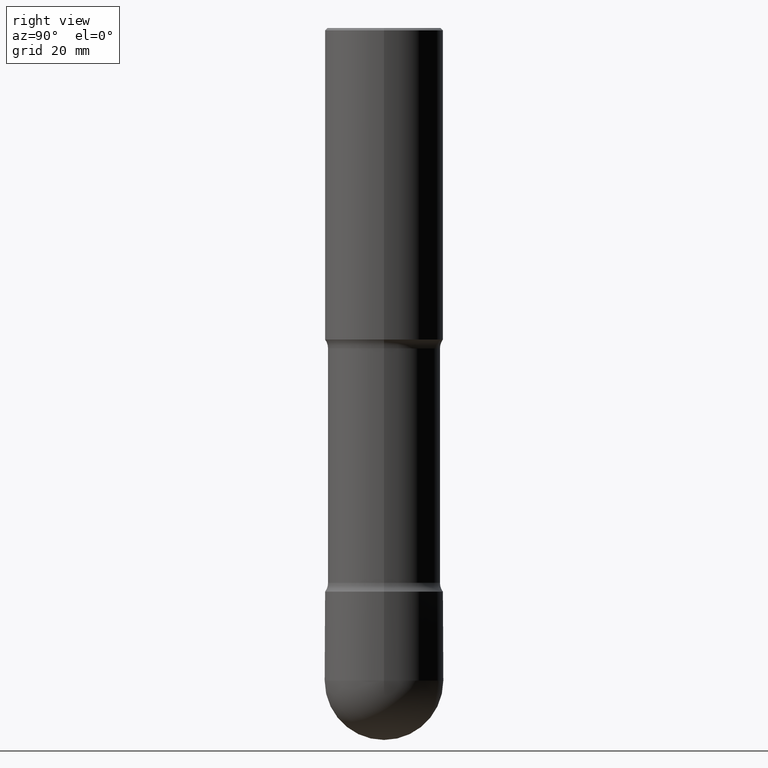
[diagram: clean part render]
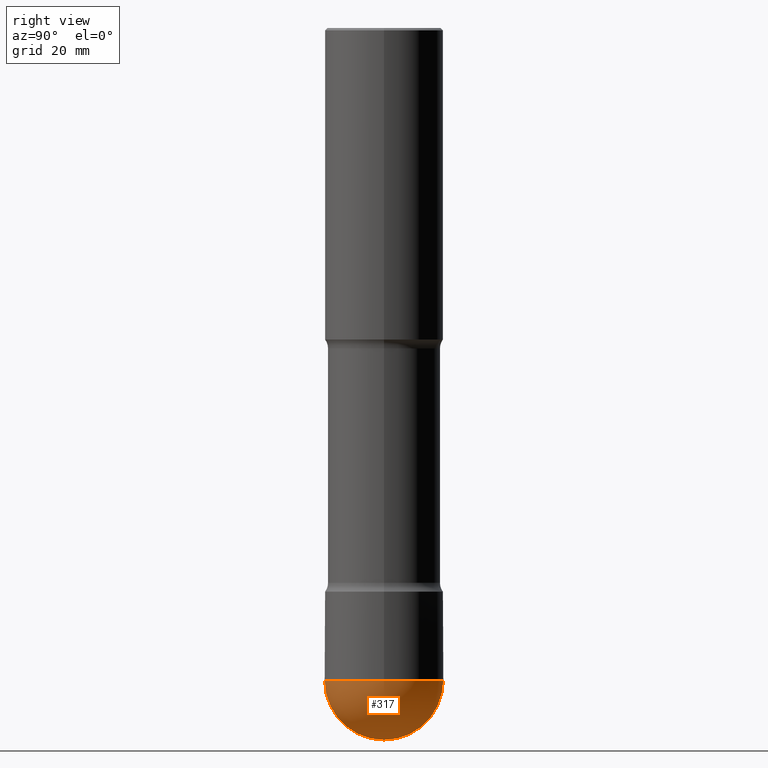
[diagram: same view with one face highlighted and labeled with its STEP entity id]
A machine part, right view. The second image highlights one B-rep face of the part: STEP entity #317.
In plain terms, the highlighted spherical surface has radius 12.7 mm.
Its self-contained STEP definition (entity closure, byte-faithful):
#7 = CARTESIAN_POINT ( 'NONE',  ( 1.340732011955928297E-28, -1.926437970359467045E-14, -5.500000000000000888 ) ) ;
#43 = AXIS2_PLACEMENT_3D ( 'NONE', #279, #371, #406 ) ;
#47 = CARTESIAN_POINT ( 'NONE',  ( 1.340732011955928297E-28, -1.926437970359467045E-14, -5.500000000000000888 ) ) ;
#64 = EDGE_LOOP ( 'NONE', ( #466, #297, #332, #186 ) ) ;
#89 = CIRCLE ( 'NONE', #415, 0.4999999999999993339 ) ;
#91 = FACE_OUTER_BOUND ( 'NONE', #64, .T. ) ;
#96 = VERTEX_POINT ( 'NONE', #346 ) ;
#102 = VERTEX_POINT ( 'NONE', #336 ) ;
#120 = CARTESIAN_POINT ( 'NONE',  ( -3.552713678800360118E-15, -0.5000000000000184297, -5.499999999999999112 ) ) ;
#143 = DIRECTION ( 'NONE',  ( 6.982962677686265922E-15, 1.000000000000000000, 0.000000000000000000 ) ) ;
#151 = VERTEX_POINT ( 'NONE', #120 ) ;
#158 = VERTEX_POINT ( 'NONE', #387 ) ;
#186 = ORIENTED_EDGE ( 'NONE', *, *, #459, .F. ) ;
#201 = EDGE_CURVE ( 'NONE', #96, #102, #388, .T. ) ;
#220 = DIRECTION ( 'NONE',  ( -1.000000000000000000, 6.982962677686265922E-15, -4.883557194083112901E-29 ) ) ;
#234 = DIRECTION ( 'NONE',  ( 6.982962677686265922E-15, 1.000000000000000000, -4.370956789862827460E-15 ) ) ;
#244 = DIRECTION ( 'NONE',  ( -7.105427357601000281E-15, -1.000000000000000000, 0.000000000000000000 ) ) ;
#262 = AXIS2_PLACEMENT_3D ( 'NONE', #7, #412, #143 ) ;
#268 = CARTESIAN_POINT ( 'NONE',  ( 1.340732011955928297E-28, -1.926437970359467045E-14, -5.500000000000000888 ) ) ;
#279 = CARTESIAN_POINT ( 'NONE',  ( 1.345007843401825128E-28, -1.920314736363730603E-14, -5.500000000000000888 ) ) ;
#297 = ORIENTED_EDGE ( 'NONE', *, *, #391, .T. ) ;
#305 = EDGE_CURVE ( 'NONE', #158, #151, #89, .T. ) ;
#317 = ADVANCED_FACE ( 'NONE', ( #91 ), #526, .T. ) ;
#332 = ORIENTED_EDGE ( 'NONE', *, *, #201, .F. ) ;
#333 = DIRECTION ( 'NONE',  ( -1.000000000000000000, 7.105427357601001070E-15, -4.926315508542082329E-29 ) ) ;
#336 = CARTESIAN_POINT ( 'NONE',  ( 3.491481338843261545E-15, 0.4999999999999799050, -5.500000000000002665 ) ) ;
#346 = CARTESIAN_POINT ( 'NONE',  ( 0.4999999999999990563, -2.138532320041425333E-14, -5.500000000000000888 ) ) ;
#371 = DIRECTION ( 'NONE',  ( -2.445468806185136597E-29, 3.491481338843145583E-15, 1.000000000000000000 ) ) ;
#387 = CARTESIAN_POINT ( 'NONE',  ( 1.465143367988133543E-28, -2.097950420303755649E-14, -6.000000000000000888 ) ) ;
#388 = CIRCLE ( 'NONE', #43, 0.4999999999999990563 ) ;
#391 = EDGE_CURVE ( 'NONE', #158, #102, #519, .T. ) ;
#406 = DIRECTION ( 'NONE',  ( 1.000000000000000000, -6.982962677686268288E-15, 0.000000000000000000 ) ) ;
#409 = DIRECTION ( 'NONE',  ( 1.000000000000000000, -6.982962677686268288E-15, 0.000000000000000000 ) ) ;
#412 = DIRECTION ( 'NONE',  ( 1.000000000000000000, -6.982962677686265922E-15, 4.883557194083112340E-29 ) ) ;
#415 = AXIS2_PLACEMENT_3D ( 'NONE', #47, #333, #244 ) ;
#418 = AXIS2_PLACEMENT_3D ( 'NONE', #454, #496, #409 ) ;
#454 = CARTESIAN_POINT ( 'NONE',  ( 1.345007843401825128E-28, -1.920314736363730603E-14, -5.500000000000000888 ) ) ;
#459 = EDGE_CURVE ( 'NONE', #151, #96, #563, .T. ) ;
#466 = ORIENTED_EDGE ( 'NONE', *, *, #305, .F. ) ;
#472 = AXIS2_PLACEMENT_3D ( 'NONE', #268, #220, #234 ) ;
#496 = DIRECTION ( 'NONE',  ( -2.445468806185136597E-29, 3.491481338843145583E-15, 1.000000000000000000 ) ) ;
#519 = CIRCLE ( 'NONE', #262, 0.4999999999999993339 ) ;
#526 = SPHERICAL_SURFACE ( 'NONE', #472, 0.4999999999999993339 ) ;
#563 = CIRCLE ( 'NONE', #418, 0.4999999999999990563 ) ;